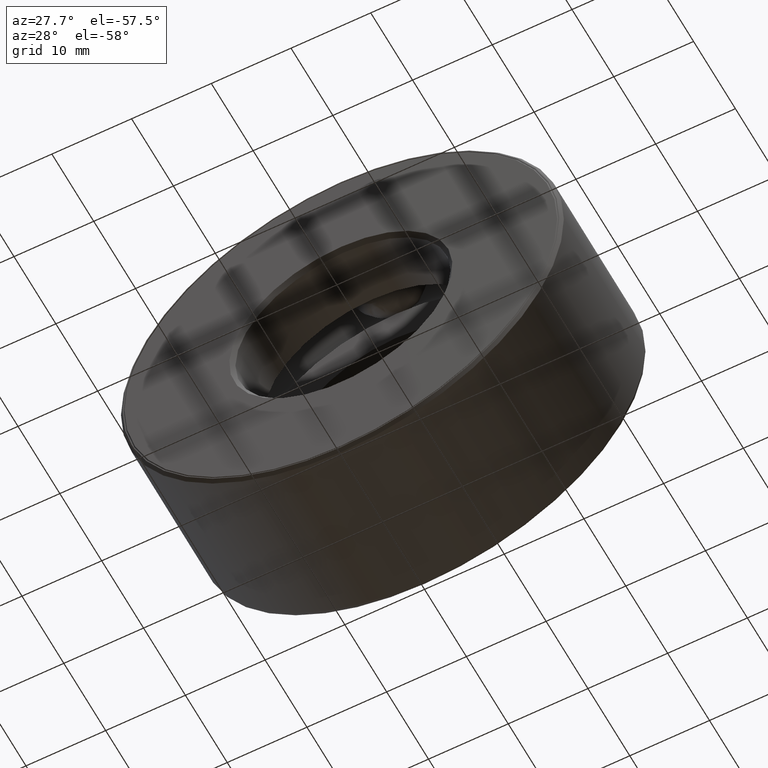
[diagram: clean part render]
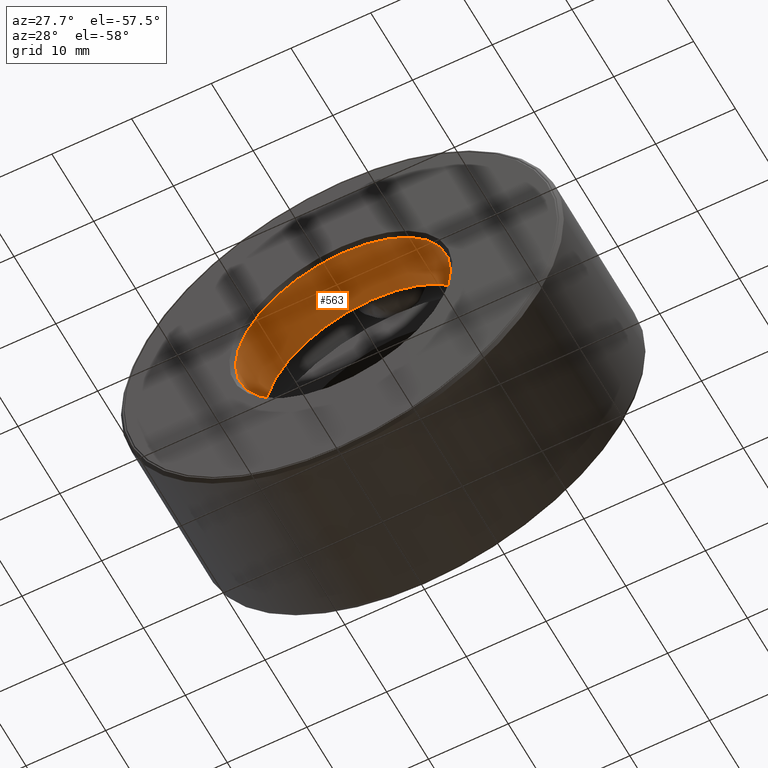
[diagram: same view with one face highlighted and labeled with its STEP entity id]
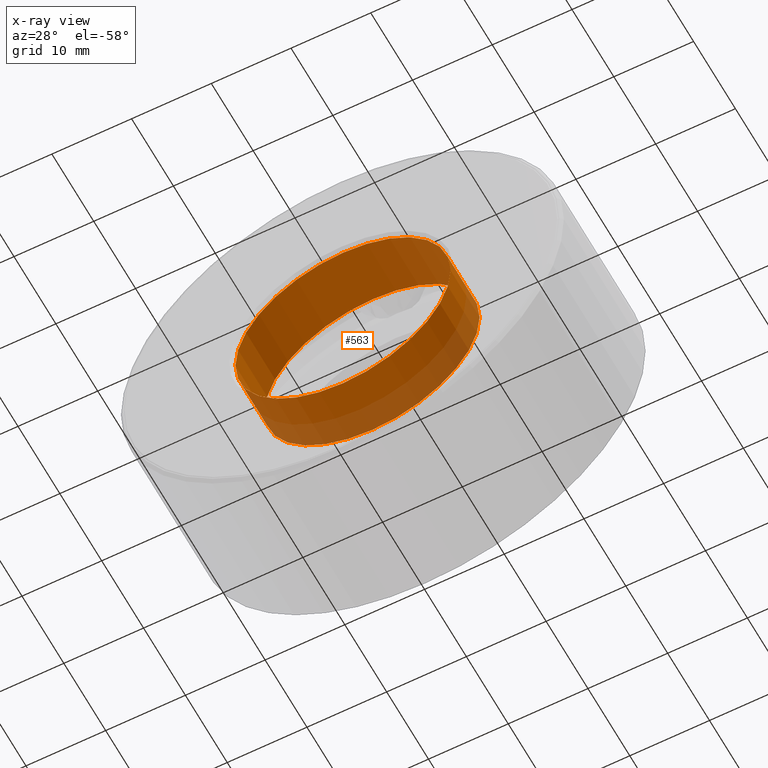
[diagram: x-ray of the same camera — body ghosted, the highlighted face saturated]
A machine part, auxiliary view. The second image highlights one B-rep face of the part: STEP entity #563.
The next image is the same camera in x-ray: the body ghosted, the highlighted face saturated — about 22% of this face is hidden behind the body in this view.
In plain terms, the highlighted cylindrical surface (bore or boss wall) has radius 13.4937 mm, axis along (-0, 1, -0).
Its self-contained STEP definition (entity closure, byte-faithful):
#20 = EDGE_CURVE ( 'NONE', #501, #501, #125, .T. ) ;
#53 = CARTESIAN_POINT ( 'NONE',  ( 0.0000000000000000000, 0.01999999999999992400, 0.5312500000000000000 ) ) ;
#56 = AXIS2_PLACEMENT_3D ( 'NONE', #134, #137, #183 ) ;
#77 = DIRECTION ( 'NONE',  ( -0.0000000000000000000, 1.000000000000000000, -0.0000000000000000000 ) ) ;
#81 = EDGE_CURVE ( 'NONE', #192, #192, #237, .T. ) ;
#102 = AXIS2_PLACEMENT_3D ( 'NONE', #333, #428, #514 ) ;
#119 = AXIS2_PLACEMENT_3D ( 'NONE', #232, #77, #551 ) ;
#125 = CIRCLE ( 'NONE', #119, 0.5312500000000000000 ) ;
#134 = CARTESIAN_POINT ( 'NONE',  ( 0.0000000000000000000, 0.0000000000000000000, 0.0000000000000000000 ) ) ;
#137 = DIRECTION ( 'NONE',  ( -0.0000000000000000000, 1.000000000000000000, -0.0000000000000000000 ) ) ;
#154 = EDGE_LOOP ( 'NONE', ( #492 ) ) ;
#183 = DIRECTION ( 'NONE',  ( 0.0000000000000000000, 0.0000000000000000000, 1.000000000000000000 ) ) ;
#185 = ORIENTED_EDGE ( 'NONE', *, *, #81, .F. ) ;
#192 = VERTEX_POINT ( 'NONE', #53 ) ;
#232 = CARTESIAN_POINT ( 'NONE',  ( 0.0000000000000000000, 0.2937500000000001200, 0.0000000000000000000 ) ) ;
#237 = CIRCLE ( 'NONE', #102, 0.5312500000000000000 ) ;
#333 = CARTESIAN_POINT ( 'NONE',  ( 0.0000000000000000000, 0.01999999999999992400, 0.0000000000000000000 ) ) ;
#351 = CARTESIAN_POINT ( 'NONE',  ( 0.0000000000000000000, 0.2937500000000001200, 0.5312500000000000000 ) ) ;
#428 = DIRECTION ( 'NONE',  ( -0.0000000000000000000, 1.000000000000000000, -0.0000000000000000000 ) ) ;
#449 = CYLINDRICAL_SURFACE ( 'NONE', #56, 0.5312500000000000000 ) ;
#450 = EDGE_LOOP ( 'NONE', ( #185 ) ) ;
#492 = ORIENTED_EDGE ( 'NONE', *, *, #20, .T. ) ;
#501 = VERTEX_POINT ( 'NONE', #351 ) ;
#514 = DIRECTION ( 'NONE',  ( 0.0000000000000000000, 0.0000000000000000000, 1.000000000000000000 ) ) ;
#542 = FACE_OUTER_BOUND ( 'NONE', #450, .T. ) ;
#551 = DIRECTION ( 'NONE',  ( 0.0000000000000000000, 0.0000000000000000000, 1.000000000000000000 ) ) ;
#563 = ADVANCED_FACE ( 'NONE', ( #542, #573 ), #449, .F. ) ;
#573 = FACE_OUTER_BOUND ( 'NONE', #154, .T. ) ;